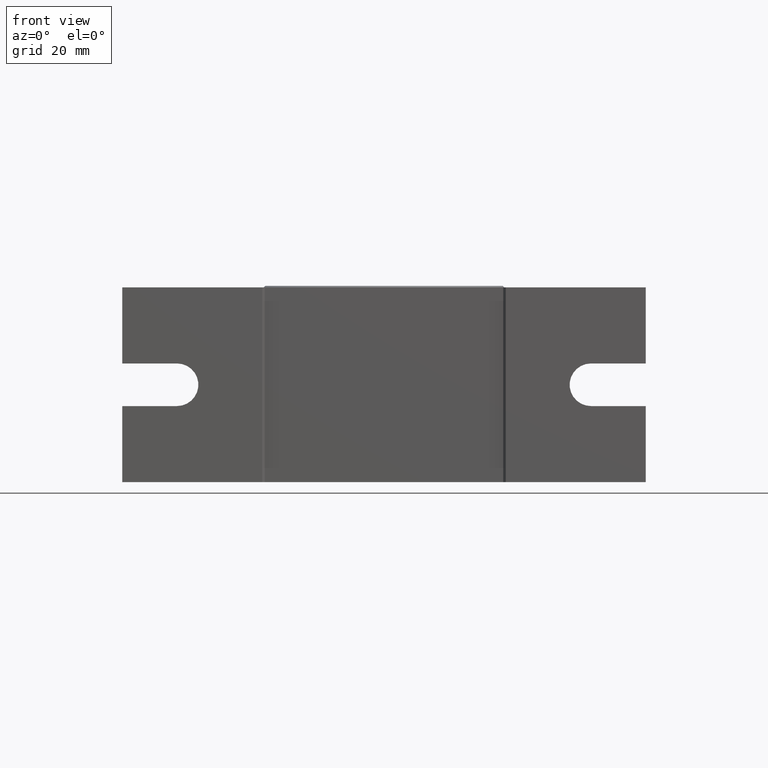
[diagram: clean part render]
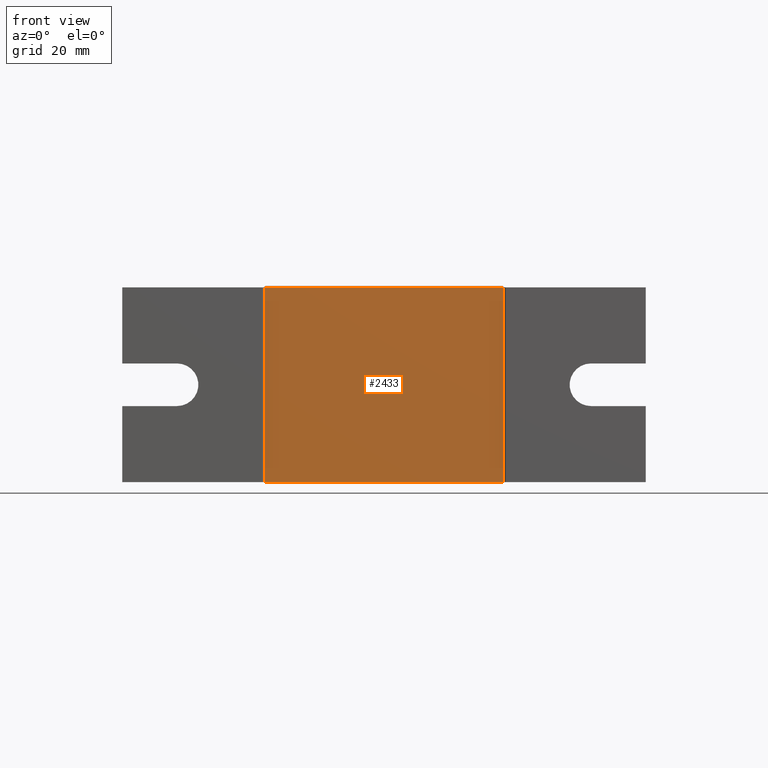
[diagram: same view with one face highlighted and labeled with its STEP entity id]
A machine part, front view. The second image highlights one B-rep face of the part: STEP entity #2433.
In plain terms, the highlighted planar face has unit normal (-0, 1, 0).
Its self-contained STEP definition (entity closure, byte-faithful):
#99 = CARTESIAN_POINT ( 'NONE',  ( -19.59999999999998700, -24.60000000000000100, -16.00000000000000000 ) ) ;
#139 = CARTESIAN_POINT ( 'NONE',  ( 19.60000000000000500, -24.59999999999999800, 16.00000000000000000 ) ) ;
#252 = LINE ( 'NONE', #99, #8769 ) ;
#416 = ORIENTED_EDGE ( 'NONE', *, *, #8421, .T. ) ;
#476 = ORIENTED_EDGE ( 'NONE', *, *, #2443, .F. ) ;
#666 = VERTEX_POINT ( 'NONE', #3613 ) ;
#722 = EDGE_CURVE ( 'NONE', #9317, #666, #252, .T. ) ;
#830 = ORIENTED_EDGE ( 'NONE', *, *, #1828, .T. ) ;
#1127 = LINE ( 'NONE', #139, #8242 ) ;
#1650 = PLANE ( 'NONE',  #5470 ) ;
#1828 = EDGE_CURVE ( 'NONE', #5914, #9317, #8985, .T. ) ;
#1856 = CARTESIAN_POINT ( 'NONE',  ( 19.60000000000000500, -24.59999999999999800, 16.00000000000000000 ) ) ;
#2307 = VERTEX_POINT ( 'NONE', #9035 ) ;
#2433 = ADVANCED_FACE ( 'NONE', ( #9065 ), #1650, .F. ) ;
#2443 = EDGE_CURVE ( 'NONE', #2307, #666, #2715, .T. ) ;
#2479 = ORIENTED_EDGE ( 'NONE', *, *, #722, .T. ) ;
#2715 = LINE ( 'NONE', #7623, #9184 ) ;
#3397 = CARTESIAN_POINT ( 'NONE',  ( -19.59999999999998700, -24.60000000000000100, 16.00000000000000000 ) ) ;
#3613 = CARTESIAN_POINT ( 'NONE',  ( -19.59999999999998700, -24.60000000000000100, -16.00000000000000000 ) ) ;
#3949 = DIRECTION ( 'NONE',  ( -1.000000000000000000, -8.673617379884035500E-017, -0.0000000000000000000 ) ) ;
#4720 = EDGE_LOOP ( 'NONE', ( #476, #416, #830, #2479 ) ) ;
#5439 = DIRECTION ( 'NONE',  ( -1.000000000000000000, -8.673617379884035500E-017, 0.0000000000000000000 ) ) ;
#5470 = AXIS2_PLACEMENT_3D ( 'NONE', #9140, #6910, #5439 ) ;
#5914 = VERTEX_POINT ( 'NONE', #1856 ) ;
#5960 = DIRECTION ( 'NONE',  ( 0.0000000000000000000, 0.0000000000000000000, -1.000000000000000000 ) ) ;
#6053 = DIRECTION ( 'NONE',  ( 0.0000000000000000000, 0.0000000000000000000, 1.000000000000000000 ) ) ;
#6910 = DIRECTION ( 'NONE',  ( -8.673617379884035500E-017, 1.000000000000000000, 0.0000000000000000000 ) ) ;
#6965 = VECTOR ( 'NONE', #7537, 1000.000000000000000 ) ;
#7537 = DIRECTION ( 'NONE',  ( -1.000000000000000000, -8.673617379884035500E-017, -0.0000000000000000000 ) ) ;
#7623 = CARTESIAN_POINT ( 'NONE',  ( -19.99999999999998200, -24.60000000000000100, -16.00000000000000000 ) ) ;
#7641 = CARTESIAN_POINT ( 'NONE',  ( -19.99999999999998200, -24.60000000000000100, 16.00000000000000000 ) ) ;
#8242 = VECTOR ( 'NONE', #6053, 1000.000000000000000 ) ;
#8421 = EDGE_CURVE ( 'NONE', #2307, #5914, #1127, .T. ) ;
#8769 = VECTOR ( 'NONE', #5960, 1000.000000000000000 ) ;
#8985 = LINE ( 'NONE', #7641, #6965 ) ;
#9035 = CARTESIAN_POINT ( 'NONE',  ( 19.60000000000000500, -24.59999999999999800, -16.00000000000000000 ) ) ;
#9065 = FACE_OUTER_BOUND ( 'NONE', #4720, .T. ) ;
#9140 = CARTESIAN_POINT ( 'NONE',  ( -19.99999999999998200, -24.60000000000000100, -16.00000000000000000 ) ) ;
#9184 = VECTOR ( 'NONE', #3949, 1000.000000000000000 ) ;
#9317 = VERTEX_POINT ( 'NONE', #3397 ) ;